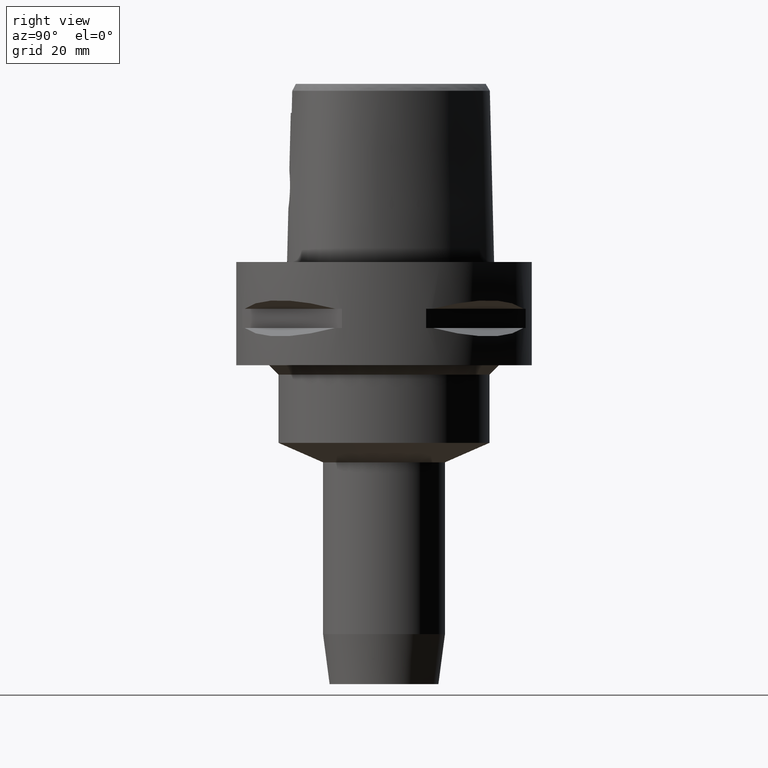
[diagram: clean part render]
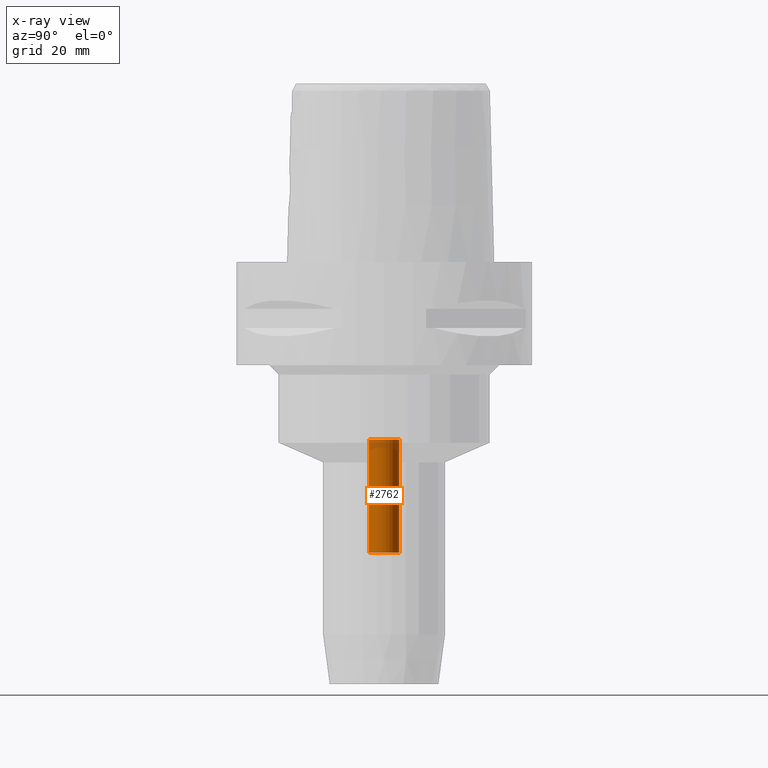
[diagram: x-ray — body ghosted, one internal face saturated and labeled with its STEP entity id]
A machine part, right view, then the same camera in x-ray: the body is ghosted and one INTERNAL B-rep face — a face not visible from any outside direction — is saturated and labeled: STEP entity #2762.
In plain terms, the highlighted cylindrical surface (edge-blend (fillet) strip) has radius 3.25 mm, axis along (0, 0, -1).
Its self-contained STEP definition (entity closure, byte-faithful):
#728=CARTESIAN_POINT('',(0.E0,1.279755905109E-14,-6.2E1));
#729=DIRECTION('',(0.E0,0.E0,-1.E0));
#730=DIRECTION('',(0.E0,1.E0,0.E0));
#731=AXIS2_PLACEMENT_3D('',#728,#729,#730);
#752=DIRECTION('',(0.E0,0.E0,1.E0));
#753=VECTOR('',#752,2.41E1);
#754=CARTESIAN_POINT('',(0.E0,-3.25E0,-6.2E1));
#755=LINE('',#754,#753);
#759=DIRECTION('',(0.E0,0.E0,1.E0));
#760=VECTOR('',#759,2.41E1);
#761=CARTESIAN_POINT('',(0.E0,3.25E0,-6.2E1));
#762=LINE('',#761,#760);
#766=CARTESIAN_POINT('',(0.E0,1.279755905109E-14,-3.79E1));
#767=DIRECTION('',(0.E0,0.E0,1.E0));
#768=DIRECTION('',(0.E0,-1.E0,0.E0));
#769=AXIS2_PLACEMENT_3D('',#766,#767,#768);
#1668=CARTESIAN_POINT('',(0.E0,-3.25E0,-6.2E1));
#1669=CARTESIAN_POINT('',(0.E0,3.25E0,-6.2E1));
#1670=VERTEX_POINT('',#1668);
#1671=VERTEX_POINT('',#1669);
#1672=CARTESIAN_POINT('',(0.E0,3.25E0,-3.79E1));
#1673=VERTEX_POINT('',#1672);
#1674=CARTESIAN_POINT('',(0.E0,-3.25E0,-3.79E1));
#1675=VERTEX_POINT('',#1674);
#2750=CARTESIAN_POINT('',(0.E0,1.279755905109E-14,4.5E0));
#2751=DIRECTION('',(0.E0,0.E0,-1.E0));
#2752=DIRECTION('',(0.E0,-1.E0,0.E0));
#2753=AXIS2_PLACEMENT_3D('',#2750,#2751,#2752);
#2754=CYLINDRICAL_SURFACE('',#2753,3.25E0);
#2755=ORIENTED_EDGE('',*,*,#2740,.T.);
#2757=ORIENTED_EDGE('',*,*,#2756,.F.);
#2758=ORIENTED_EDGE('',*,*,#2743,.F.);
#2759=ORIENTED_EDGE('',*,*,#2726,.F.);
#2760=EDGE_LOOP('',(#2755,#2757,#2758,#2759));
#2761=FACE_OUTER_BOUND('',#2760,.F.);
#732=CIRCLE('',#731,3.25E0);
#770=CIRCLE('',#769,3.25E0);
#2726=EDGE_CURVE('',#1671,#1670,#732,.T.);
#2740=EDGE_CURVE('',#1671,#1673,#762,.T.);
#2743=EDGE_CURVE('',#1670,#1675,#755,.T.);
#2756=EDGE_CURVE('',#1675,#1673,#770,.T.);
#2762=ADVANCED_FACE('',(#2761),#2754,.F.);